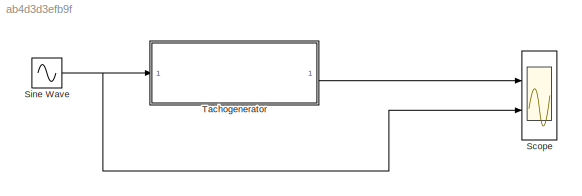
MODEL slx_ab4d3d3efb9f
KIND model
CONFIG AbsTol = auto
CONFIG EnableMultiTasking = off
CONFIG FixedStep = 0.05
CONFIG MaxStep = auto
CONFIG MinStep = auto
CONFIG RelTol = 1e-3
CONFIG SampleTimeConstraint = Unconstrained
CONFIG SolverName = ode4
CONFIG StartTime = 0.0
CONFIG StopTime = 10.0
BLOCK [Scope] Scope
  Floating = off
  NumInputPorts = 2
  Ports = [2]
  ScopeSpecificationString = Simulink.scopes.TimeScopeBlockCfg('CurrentConfiguration', extmgr.ConfigurationSet(extmgr.Configuration('Core','General UI',true),extmgr.Configuration('Core','Source UI',true),extmgr.Configuration('Sources','WiredSimulink',true),extmgr.Configuration('Visuals','Time Domain',true,'SerializedDisplays',{struct('MinYLimReal','-3.58099','MaxYLimReal','3.58099','YLabelReal','','MinYLimMag','0.00000','MaxY...<+1983ch>
BLOCK [Sin] Sine Wave
  Amplitude = 1000*2*pi/60
  Frequency = 2*pi
  Ports = [0, 1]
  SampleTime = 0
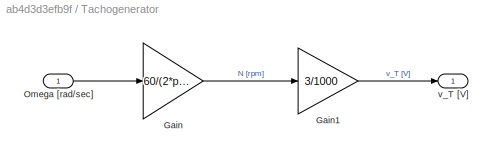
BLOCK [SubSystem] Tachogenerator
  Ports = [1, 1]
  RequestExecContextInheritance = off
BLOCK [Gain] Tachogenerator/Gain
  Gain = 60/(2*pi)
BLOCK [Gain] Tachogenerator/Gain1
  Gain = 3/1000
BLOCK [Inport] Tachogenerator/Omega [rad//sec]
BLOCK [Outport] Tachogenerator/v_T [V]
NET Sine Wave:1 -> Scope:2, Tachogenerator:1
LINE Tachogenerator/Gain1:1 -> Tachogenerator/v_T [V]:1
LINE Tachogenerator/Gain:1 -> Tachogenerator/Gain1:1
LINE Tachogenerator/Omega [rad//sec]:1 -> Tachogenerator/Gain:1
LINE Tachogenerator:1 -> Scope:1
note: NET lines group one-source signal fan-out (src -> all destinations, sorted); 1:1 wires keep LINE
